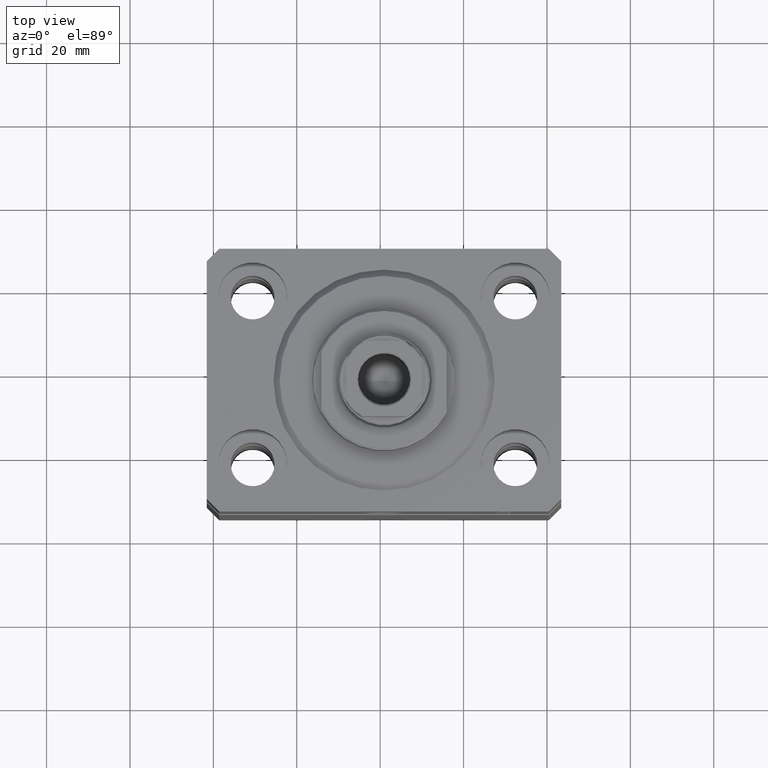
[diagram: clean part render]
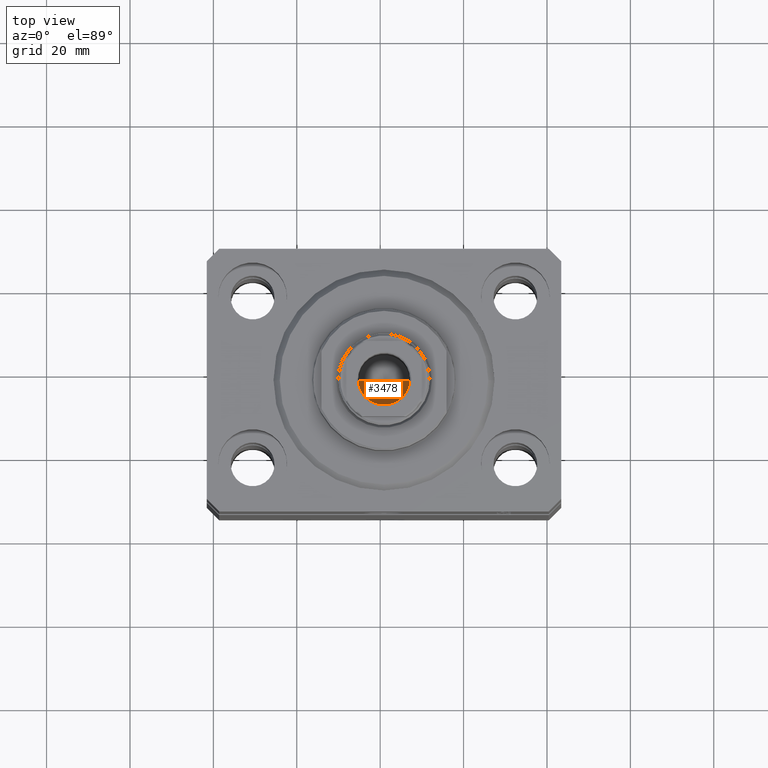
[diagram: same view with one face highlighted and labeled with its STEP entity id]
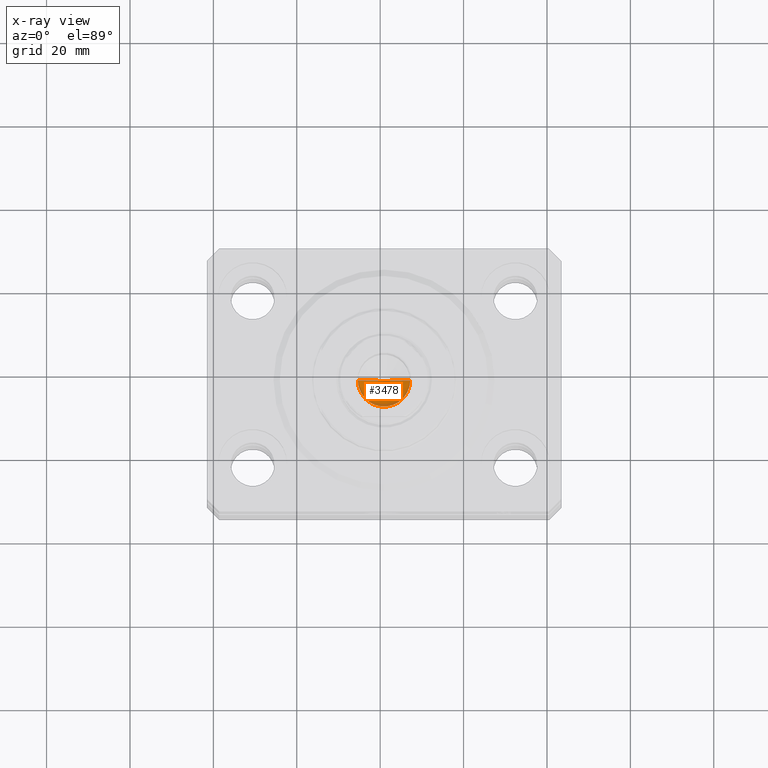
[diagram: x-ray of the same camera — body ghosted, the highlighted face saturated]
A machine part, top view. The second image highlights one B-rep face of the part: STEP entity #3478.
The next image is the same camera in x-ray: the body ghosted, the highlighted face saturated — about 9% of this face is hidden behind the body in this view.
In plain terms, the highlighted conical surface has half-angle 59 deg.
Its self-contained STEP definition (entity closure, byte-faithful):
#119 = VECTOR ( 'NONE', #40997, 1000.000000000000000 ) ;
#185 = AXIS2_PLACEMENT_3D ( 'NONE', #8333, #5817, #33045 ) ;
#1229 = CARTESIAN_POINT ( 'NONE',  ( -7.434177670704979810E-15, 0.000000000000000000, 99.74462113107774996 ) ) ;
#2242 = CONICAL_SURFACE ( 'NONE', #40601, 6.249999999999993783, 1.029744258676652979 ) ;
#2701 = DIRECTION ( 'NONE',  ( 1.000000000000000000, 0.000000000000000000, 0.000000000000000000 ) ) ;
#3478 = ADVANCED_FACE ( 'NONE', ( #33989 ), #2242, .F. ) ;
#3958 = ORIENTED_EDGE ( 'NONE', *, *, #10421, .F. ) ;
#4903 = ORIENTED_EDGE ( 'NONE', *, *, #8150, .T. ) ;
#5817 = DIRECTION ( 'NONE',  ( -0.000000000000000000, -0.000000000000000000, 1.000000000000000000 ) ) ;
#5882 = CARTESIAN_POINT ( 'NONE',  ( 0.000000000000000000, 0.000000000000000000, 103.5000000000000142 ) ) ;
#7970 = ORIENTED_EDGE ( 'NONE', *, *, #38999, .T. ) ;
#8150 = EDGE_CURVE ( 'NONE', #36852, #22706, #30582, .T. ) ;
#8333 = CARTESIAN_POINT ( 'NONE',  ( 0.000000000000000000, 0.000000000000000000, 103.5000000000000142 ) ) ;
#10421 = EDGE_CURVE ( 'NONE', #24869, #22706, #26491, .T. ) ;
#11576 = EDGE_LOOP ( 'NONE', ( #3958, #7970, #4903 ) ) ;
#12870 = VECTOR ( 'NONE', #36529, 1000.000000000000000 ) ;
#14083 = LINE ( 'NONE', #29057, #12870 ) ;
#22706 = VERTEX_POINT ( 'NONE', #36342 ) ;
#22869 = CARTESIAN_POINT ( 'NONE',  ( 6.249999999999993783, 0.000000000000000000, 103.5000000000000142 ) ) ;
#24869 = VERTEX_POINT ( 'NONE', #1229 ) ;
#25632 = CARTESIAN_POINT ( 'NONE',  ( -6.249999999999993783, 7.654042494670949718E-16, 103.5000000000000142 ) ) ;
#26491 = LINE ( 'NONE', #22869, #119 ) ;
#29057 = CARTESIAN_POINT ( 'NONE',  ( -6.249999999999993783, 7.654042494670949718E-16, 103.5000000000000142 ) ) ;
#30582 = CIRCLE ( 'NONE', #185, 6.249999999999993783 ) ;
#33045 = DIRECTION ( 'NONE',  ( 1.000000000000000000, 0.000000000000000000, 0.000000000000000000 ) ) ;
#33989 = FACE_OUTER_BOUND ( 'NONE', #11576, .T. ) ;
#36342 = CARTESIAN_POINT ( 'NONE',  ( 6.249999999999993783, 0.000000000000000000, 103.5000000000000142 ) ) ;
#36529 = DIRECTION ( 'NONE',  ( -0.8571673007021115565, 1.049727191138617710E-16, 0.5150380749100554878 ) ) ;
#36852 = VERTEX_POINT ( 'NONE', #25632 ) ;
#38999 = EDGE_CURVE ( 'NONE', #24869, #36852, #14083, .T. ) ;
#40601 = AXIS2_PLACEMENT_3D ( 'NONE', #5882, #40801, #2701 ) ;
#40801 = DIRECTION ( 'NONE',  ( -0.000000000000000000, -0.000000000000000000, 1.000000000000000000 ) ) ;
#40997 = DIRECTION ( 'NONE',  ( 0.8571673007021115565, 0.000000000000000000, 0.5150380749100554878 ) ) ;